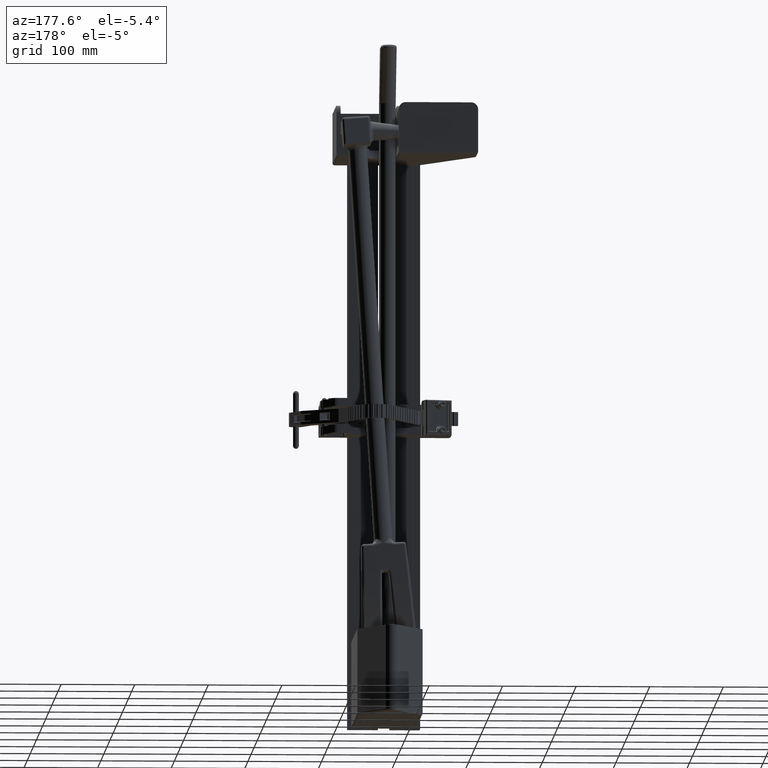
[diagram: clean part render]
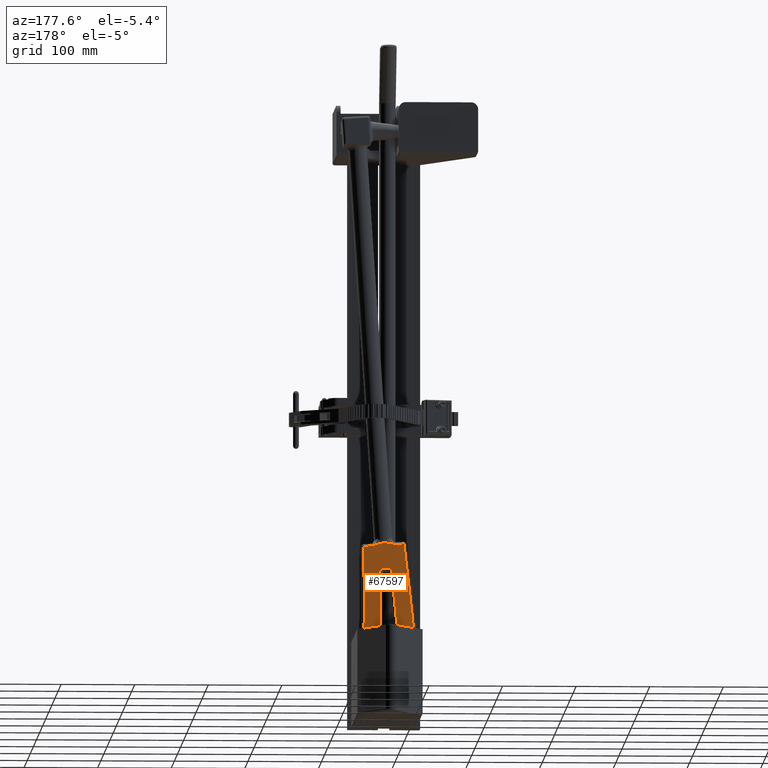
[diagram: same view with one face highlighted and labeled with its STEP entity id]
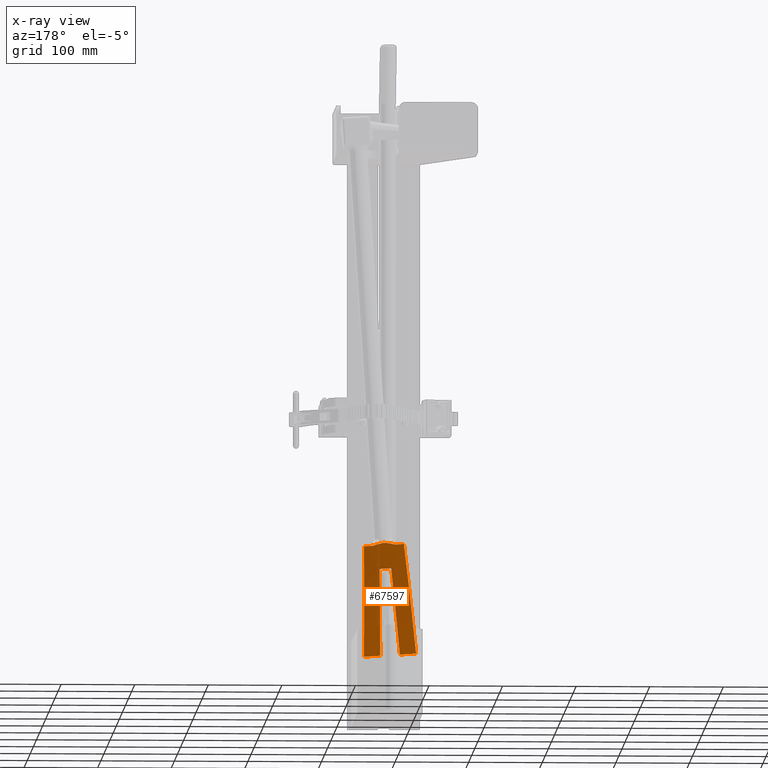
[diagram: x-ray of the same camera — body ghosted, the highlighted face saturated]
A machine part, auxiliary view. The second image highlights one B-rep face of the part: STEP entity #67597.
The next image is the same camera in x-ray: the body ghosted, the highlighted face saturated — about 0% of this face is hidden behind the body in this view.
In plain terms, the highlighted cylindrical surface (partial cylindrical patch) has radius 415.856 mm, axis along (0.998, 0.0022, -0.0633).
Its self-contained STEP definition (entity closure, byte-faithful):
#3 = ORIENTED_EDGE ( 'NONE', *, *, #25947, .T. ) ;
#6 = ORIENTED_EDGE ( 'NONE', *, *, #25945, .T. ) ;
#19 = ORIENTED_EDGE ( 'NONE', *, *, #25953, .T. ) ;
#22 = ORIENTED_EDGE ( 'NONE', *, *, #25944, .T. ) ;
#41 = ORIENTED_EDGE ( 'NONE', *, *, #25950, .T. ) ;
#45 = ORIENTED_EDGE ( 'NONE', *, *, #25942, .T. ) ;
#49 = ORIENTED_EDGE ( 'NONE', *, *, #25941, .T. ) ;
#50 = ORIENTED_EDGE ( 'NONE', *, *, #25949, .T. ) ;
#54 = ORIENTED_EDGE ( 'NONE', *, *, #25938, .T. ) ;
#64 = ORIENTED_EDGE ( 'NONE', *, *, #25943, .T. ) ;
#84 = ORIENTED_EDGE ( 'NONE', *, *, #25948, .T. ) ;
#92 = ORIENTED_EDGE ( 'NONE', *, *, #25951, .T. ) ;
#93 = ORIENTED_EDGE ( 'NONE', *, *, #25946, .T. ) ;
#99 = ORIENTED_EDGE ( 'NONE', *, *, #25952, .T. ) ;
#10930 = AXIS2_PLACEMENT_3D ( 'NONE', #47121, #47122, #47116 ) ;
#18871 = FACE_OUTER_BOUND ( 'NONE', #26546, .T. ) ;
#18877 = CYLINDRICAL_SURFACE ( 'NONE', #10930, 16.37227893540376700 ) ;
#19837 = CARTESIAN_POINT ( 'NONE',  ( 22.32575300356812100, -0.4991107057813109500, -0.4182822831564916900 ) ) ;
#19838 = CARTESIAN_POINT ( 'NONE',  ( 22.37714890094780500, -0.4983077203292660100, -0.6504825545492684000 ) ) ;
#19839 = CARTESIAN_POINT ( 'NONE',  ( 22.37714890094780500, -0.4983077203292757800, -1.069456480455216000 ) ) ;
#19840 = CARTESIAN_POINT ( 'NONE',  ( 28.17138707786700300, 0.6683475103379036300, -1.398883563788548600 ) ) ;
#19841 = CARTESIAN_POINT ( 'NONE',  ( 28.17138707786700300, 0.6683475103379057400, -0.5253212139724086100 ) ) ;
#19842 = CARTESIAN_POINT ( 'NONE',  ( 23.63676589593023200, -0.4280372755520907600, -0.3065712139724085000 ) ) ;
#19843 = CARTESIAN_POINT ( 'NONE',  ( 23.63676589593023200, -0.4280372755520910300, 0.3065712139724084400 ) ) ;
#19844 = CARTESIAN_POINT ( 'NONE',  ( 28.17138707786700300, 0.6683475103379059600, 0.5253212139724085000 ) ) ;
#19845 = CARTESIAN_POINT ( 'NONE',  ( 28.17138707786700300, 0.6683475103379036300, 1.398883563788548600 ) ) ;
#19846 = CARTESIAN_POINT ( 'NONE',  ( 22.37714890094780500, -0.4983077203292757800, 1.069456480455215400 ) ) ;
#19847 = CARTESIAN_POINT ( 'NONE',  ( 22.37714890094780500, -0.4983077203292679600, 0.6504825545492685100 ) ) ;
#19848 = CARTESIAN_POINT ( 'NONE',  ( 22.32575300356813500, -0.4991107057813106200, 0.4182822831564853600 ) ) ;
#19849 = CARTESIAN_POINT ( 'NONE',  ( 22.25062553387528300, -0.4999940920681562000, 0.0004827047481942547400 ) ) ;
#19850 = CARTESIAN_POINT ( 'NONE',  ( 22.25062553388945100, -0.4999940920680213100, -0.0004827048719906304000 ) ) ;
#25599 =( BOUNDED_CURVE ( )  B_SPLINE_CURVE ( 3, ( #44915, #44924, #44925, #44926 ),
 .UNSPECIFIED., .F., .T. ) 
 B_SPLINE_CURVE_WITH_KNOTS ( ( 4, 4 ),
 ( 4.729581034854482400, 5.092578672325952700 ),
 .UNSPECIFIED. ) 
 CURVE ( )  GEOMETRIC_REPRESENTATION_ITEM ( )  RATIONAL_B_SPLINE_CURVE ( ( 1.000000000000000000, 0.9890495032855477500, 0.9890495032855477500, 1.000000000000000000 ) ) 
 REPRESENTATION_ITEM ( '' )  );
#25633 =( BOUNDED_CURVE ( )  B_SPLINE_CURVE ( 3, ( #44923, #44940, #44941, #44942 ),
 .UNSPECIFIED., .F., .T. ) 
 B_SPLINE_CURVE_WITH_KNOTS ( ( 4, 4 ),
 ( 1.665063044591186900, 1.950986018736161000 ),
 .UNSPECIFIED. ) 
 CURVE ( )  GEOMETRIC_REPRESENTATION_ITEM ( )  RATIONAL_B_SPLINE_CURVE ( ( 1.000000000000000000, 0.9931989329278714300, 0.9931989329278714300, 1.000000000000000000 ) ) 
 REPRESENTATION_ITEM ( '' )  );
#25635 =( BOUNDED_CURVE ( )  B_SPLINE_CURVE ( 3, ( #44929, #44946, #44947, #44948 ),
 .UNSPECIFIED., .F., .T. ) 
 B_SPLINE_CURVE_WITH_KNOTS ( ( 4, 4 ),
 ( 4.332199288443425700, 4.695196925914896900 ),
 .UNSPECIFIED. ) 
 CURVE ( )  GEOMETRIC_REPRESENTATION_ITEM ( )  RATIONAL_B_SPLINE_CURVE ( ( 1.000000000000000000, 0.9890495032855476400, 0.9890495032855476400, 1.000000000000000000 ) ) 
 REPRESENTATION_ITEM ( '' )  );
#25636 =( BOUNDED_CURVE ( )  B_SPLINE_CURVE ( 3, ( #44912, #44920, #44921, #44922 ),
 .UNSPECIFIED., .F., .F. ) 
 B_SPLINE_CURVE_WITH_KNOTS ( ( 4, 4 ),
 ( 1.190606634853633900, 1.476529608998607300 ),
 .UNSPECIFIED. ) 
 CURVE ( )  GEOMETRIC_REPRESENTATION_ITEM ( )  RATIONAL_B_SPLINE_CURVE ( ( 1.000000000000000000, 0.9931989329278714300, 0.9931989329278714300, 1.000000000000000000 ) ) 
 REPRESENTATION_ITEM ( '' )  );
#25938 = EDGE_CURVE ( 'NONE', #66661, #66663, #40624, .T. ) ;
#25941 = EDGE_CURVE ( 'NONE', #66659, #66661, #25636, .T. ) ;
#25942 = EDGE_CURVE ( 'NONE', #66655, #66657, #25599, .T. ) ;
#25943 = EDGE_CURVE ( 'NONE', #66654, #66655, #40629, .T. ) ;
#25944 = EDGE_CURVE ( 'NONE', #66652, #66654, #76880, .T. ) ;
#25945 = EDGE_CURVE ( 'NONE', #66657, #66659, #40630, .T. ) ;
#25946 = EDGE_CURVE ( 'NONE', #66663, #66664, #25633, .T. ) ;
#25947 = EDGE_CURVE ( 'NONE', #66664, #66666, #40633, .T. ) ;
#25948 = EDGE_CURVE ( 'NONE', #66666, #66668, #25635, .T. ) ;
#25949 = EDGE_CURVE ( 'NONE', #66668, #66670, #40634, .T. ) ;
#25950 = EDGE_CURVE ( 'NONE', #66670, #66672, #76870, .T. ) ;
#25951 = EDGE_CURVE ( 'NONE', #66672, #66674, #76863, .T. ) ;
#25952 = EDGE_CURVE ( 'NONE', #66674, #66676, #76862, .T. ) ;
#25953 = EDGE_CURVE ( 'NONE', #66676, #66652, #76864, .T. ) ;
#26546 = EDGE_LOOP ( 'NONE', ( #22, #64, #45, #6, #49, #54, #93, #3, #84, #50, #41, #92, #99, #19 ) ) ;
#40624 = LINE ( 'NONE', #44913, #40625 ) ;
#40625 = VECTOR ( 'NONE', #44914, 39.37007874015748100 ) ;
#40629 = LINE ( 'NONE', #44927, #40632 ) ;
#40630 = LINE ( 'NONE', #44937, #40631 ) ;
#40631 = VECTOR ( 'NONE', #44938, 39.37007874015748100 ) ;
#40632 = VECTOR ( 'NONE', #44928, 39.37007874015748100 ) ;
#40633 = LINE ( 'NONE', #44943, #40636 ) ;
#40634 = LINE ( 'NONE', #44949, #40639 ) ;
#40636 = VECTOR ( 'NONE', #44944, 39.37007874015748100 ) ;
#40639 = VECTOR ( 'NONE', #44950, 39.37007874015748100 ) ;
#44912 = CARTESIAN_POINT ( 'NONE',  ( 28.17138707786700300, 0.6683475103379057400, -0.5253212139724086100 ) ) ;
#44913 = CARTESIAN_POINT ( 'NONE',  ( 23.63676589593023200, -0.4280372755520926400, 1.531250000000000000 ) ) ;
#44914 = DIRECTION ( 'NONE',  ( 0.0000000000000000000, 0.0000000000000000000, 1.000000000000000000 ) ) ;
#44915 = CARTESIAN_POINT ( 'NONE',  ( 22.37714890094780500, -0.4983077203292757800, -1.069456480455216000 ) ) ;
#44919 = CARTESIAN_POINT ( 'NONE',  ( 22.32575300356812100, -0.4991107057813109500, -0.4182822831564916900 ) ) ;
#44920 = CARTESIAN_POINT ( 'NONE',  ( 26.71744762007532300, 0.08730577122607431600, -0.4551832148692310800 ) ) ;
#44921 = CARTESIAN_POINT ( 'NONE',  ( 25.19555674417292200, -0.2806583728948935900, -0.3817672412417584300 ) ) ;
#44922 = CARTESIAN_POINT ( 'NONE',  ( 23.63676589593023200, -0.4280372755520907600, -0.3065712139724085000 ) ) ;
#44923 = CARTESIAN_POINT ( 'NONE',  ( 23.63676589593023200, -0.4280372755520910300, 0.3065712139724084400 ) ) ;
#44924 = CARTESIAN_POINT ( 'NONE',  ( 24.36884206523168900, -0.4640630490333947400, -1.182692707543456300 ) ) ;
#44925 = CARTESIAN_POINT ( 'NONE',  ( 26.32163888604168600, -0.07087233856115753000, -1.293717512078517800 ) ) ;
#44926 = CARTESIAN_POINT ( 'NONE',  ( 28.17138707786700300, 0.6683475103379036300, -1.398883563788548600 ) ) ;
#44927 = CARTESIAN_POINT ( 'NONE',  ( 22.37714890094780500, -0.4983077203292692300, 1.531250000000000000 ) ) ;
#44928 = DIRECTION ( 'NONE',  ( -0.0000000000000000000, -0.0000000000000000000, -1.000000000000000000 ) ) ;
#44929 = CARTESIAN_POINT ( 'NONE',  ( 28.17138707786700300, 0.6683475103379036300, 1.398883563788548600 ) ) ;
#44930 = CARTESIAN_POINT ( 'NONE',  ( 22.34177068318661000, -0.4988856030389913800, -0.4550761106763237000 ) ) ;
#44931 = CARTESIAN_POINT ( 'NONE',  ( 22.35451083446443500, -0.4986836856965999900, -0.4927447227213089300 ) ) ;
#44932 = CARTESIAN_POINT ( 'NONE',  ( 22.36777686488632400, -0.4984667745796566600, -0.5508076638195651400 ) ) ;
#44933 = CARTESIAN_POINT ( 'NONE',  ( 22.37122148393089900, -0.4984087297686175000, -0.5704228773294577300 ) ) ;
#44934 = CARTESIAN_POINT ( 'NONE',  ( 22.37591654127832900, -0.4983290311830029800, -0.6102390259847970700 ) ) ;
#44935 = CARTESIAN_POINT ( 'NONE',  ( 22.37714890094781600, -0.4983077203292679600, -0.6303651558313734200 ) ) ;
#44936 = CARTESIAN_POINT ( 'NONE',  ( 22.37714890094780500, -0.4983077203292660100, -0.6504825545492684000 ) ) ;
#44937 = CARTESIAN_POINT ( 'NONE',  ( 28.17138707786700300, 0.6683475103379036300, 1.531250000000000000 ) ) ;
#44938 = DIRECTION ( 'NONE',  ( 0.0000000000000000000, 0.0000000000000000000, 1.000000000000000000 ) ) ;
#44939 = CARTESIAN_POINT ( 'NONE',  ( 22.37714890094780500, -0.4983077203292679600, 0.6504825545492685100 ) ) ;
#44940 = CARTESIAN_POINT ( 'NONE',  ( 25.19555674417294400, -0.2806583728948895400, 0.3817672412417593700 ) ) ;
#44941 = CARTESIAN_POINT ( 'NONE',  ( 26.71744762007534000, 0.08730577122608149100, 0.4551832148692320800 ) ) ;
#44942 = CARTESIAN_POINT ( 'NONE',  ( 28.17138707786700300, 0.6683475103379059600, 0.5253212139724085000 ) ) ;
#44943 = CARTESIAN_POINT ( 'NONE',  ( 28.17138707786700300, 0.6683475103379036300, 1.531250000000000000 ) ) ;
#44944 = DIRECTION ( 'NONE',  ( 0.0000000000000000000, 0.0000000000000000000, 1.000000000000000000 ) ) ;
#44945 = CARTESIAN_POINT ( 'NONE',  ( 22.32575300356813500, -0.4991107057813106200, 0.4182822831564853600 ) ) ;
#44946 = CARTESIAN_POINT ( 'NONE',  ( 26.32163888604170100, -0.07087233856115533700, 1.293717512078518000 ) ) ;
#44947 = CARTESIAN_POINT ( 'NONE',  ( 24.36884206523169600, -0.4640630490333939000, 1.182692707543456300 ) ) ;
#44948 = CARTESIAN_POINT ( 'NONE',  ( 22.37714890094780500, -0.4983077203292757800, 1.069456480455215400 ) ) ;
#44949 = CARTESIAN_POINT ( 'NONE',  ( 22.37714890094780500, -0.4983077203292692300, 1.531250000000000000 ) ) ;
#44950 = DIRECTION ( 'NONE',  ( -0.0000000000000000000, -0.0000000000000000000, -1.000000000000000000 ) ) ;
#44951 = CARTESIAN_POINT ( 'NONE',  ( 22.25062553387528300, -0.4999940920681562000, 0.0004827047481942547400 ) ) ;
#44952 = CARTESIAN_POINT ( 'NONE',  ( 22.37714890094780500, -0.4983077203292678400, 0.6101831589586828000 ) ) ;
#44953 = CARTESIAN_POINT ( 'NONE',  ( 22.37229243461154100, -0.4983928681542436600, 0.5707581840100592900 ) ) ;
#44954 = CARTESIAN_POINT ( 'NONE',  ( 22.35908792462282700, -0.4986088819377201800, 0.5126865552896258100 ) ) ;
#44955 = CARTESIAN_POINT ( 'NONE',  ( 22.35368789415236200, -0.4986955113719620000, 0.4935091249960929500 ) ) ;
#44956 = CARTESIAN_POINT ( 'NONE',  ( 22.34102378491793700, -0.4988902004961760000, 0.4554898588960106200 ) ) ;
#44957 = CARTESIAN_POINT ( 'NONE',  ( 22.33377348458257200, -0.4989979908117218600, 0.4367059376495450700 ) ) ;
#44958 = CARTESIAN_POINT ( 'NONE',  ( 22.32575300356813500, -0.4991107057813106200, 0.4182822831564853600 ) ) ;
#44959 = CARTESIAN_POINT ( 'NONE',  ( 22.25062553388945100, -0.4999940920680213100, -0.0004827048719906304000 ) ) ;
#44960 = CARTESIAN_POINT ( 'NONE',  ( 22.32397881782552000, -0.4991356391103296000, 0.4142068436573569900 ) ) ;
#44961 = CARTESIAN_POINT ( 'NONE',  ( 22.32259097389156500, -0.4991548952314649500, 0.4099989833276998000 ) ) ;
#44962 = CARTESIAN_POINT ( 'NONE',  ( 22.31984368511407300, -0.4991927426467839800, 0.4015735275466204600 ) ) ;
#44963 = CARTESIAN_POINT ( 'NONE',  ( 22.31856117671776100, -0.4992102411931849100, 0.3973273435377681100 ) ) ;
#44964 = CARTESIAN_POINT ( 'NONE',  ( 22.31488482627942100, -0.4992600157734783900, 0.3845513792526210600 ) ) ;
#44965 = CARTESIAN_POINT ( 'NONE',  ( 22.31266069680119200, -0.4992895954947736400, 0.3759806560089527000 ) ) ;
#44966 = CARTESIAN_POINT ( 'NONE',  ( 22.30636348638711700, -0.4993722480422508300, 0.3501801162606323300 ) ) ;
#44967 = CARTESIAN_POINT ( 'NONE',  ( 22.30266721998519600, -0.4994192227447246700, 0.3328615443178530900 ) ) ;
#44968 = CARTESIAN_POINT ( 'NONE',  ( 22.29231155817583200, -0.4995479651124274400, 0.2807331432796336700 ) ) ;
#44969 = CARTESIAN_POINT ( 'NONE',  ( 22.28640430751948600, -0.4996173280258663400, 0.2458102376804541200 ) ) ;
#44970 = CARTESIAN_POINT ( 'NONE',  ( 22.26979000062182500, -0.4998052540225304500, 0.1408736413127052400 ) ) ;
#44971 = CARTESIAN_POINT ( 'NONE',  ( 22.26024524272174800, -0.4999030537471716400, 0.07066774978378397000 ) ) ;
#44972 = CARTESIAN_POINT ( 'NONE',  ( 22.25062553387528300, -0.4999940920681562000, 0.0004827047481942547400 ) ) ;
#44973 = CARTESIAN_POINT ( 'NONE',  ( 22.25058183548797100, -0.4999945056178646800, 0.0001638825659774892500 ) ) ;
#44974 = CARTESIAN_POINT ( 'NONE',  ( 22.25058183549423100, -0.4999945056178084500, -0.0001638826908973019200 ) ) ;
#44975 = CARTESIAN_POINT ( 'NONE',  ( 22.25062553388945100, -0.4999940920680213100, -0.0004827048719906304000 ) ) ;
#44977 = CARTESIAN_POINT ( 'NONE',  ( 22.26024123179037100, -0.4999030917055336500, -0.07063855358566197000 ) ) ;
#44978 = CARTESIAN_POINT ( 'NONE',  ( 22.26978170869389500, -0.4998053340880611000, -0.1408079140265557100 ) ) ;
#44979 = CARTESIAN_POINT ( 'NONE',  ( 22.28637802229483000, -0.4996176321842922800, -0.2456508784242879600 ) ) ;
#44980 = CARTESIAN_POINT ( 'NONE',  ( 22.29227702824662000, -0.4995483734879148100, -0.2805325439605321800 ) ) ;
#44981 = CARTESIAN_POINT ( 'NONE',  ( 22.30261024961119200, -0.4994199413440772500, -0.3325880138227826900 ) ) ;
#44982 = CARTESIAN_POINT ( 'NONE',  ( 22.30629996065856700, -0.4993730649359246500, -0.3498957186960419700 ) ) ;
#44983 = CARTESIAN_POINT ( 'NONE',  ( 22.31259435348185600, -0.4992904745214603000, -0.3757206203677560500 ) ) ;
#44984 = CARTESIAN_POINT ( 'NONE',  ( 22.31481868090899600, -0.4992609017963265400, -0.3843062243317833500 ) ) ;
#44985 = CARTESIAN_POINT ( 'NONE',  ( 22.31850014077177100, -0.4992110721502277000, -0.3971225874678932500 ) ) ;
#44986 = CARTESIAN_POINT ( 'NONE',  ( 22.31978471611108700, -0.4991935506104507900, -0.4013843811242019400 ) ) ;
#44987 = CARTESIAN_POINT ( 'NONE',  ( 22.32254734323190700, -0.4991555005485418500, -0.4098731717241642600 ) ) ;
#44988 = CARTESIAN_POINT ( 'NONE',  ( 22.32393913220775500, -0.4991361968279037200, -0.4141156827770390300 ) ) ;
#44989 = CARTESIAN_POINT ( 'NONE',  ( 22.32575300356812100, -0.4991107057813109500, -0.4182822831564916900 ) ) ;
#47116 = DIRECTION ( 'NONE',  ( -1.000000000000000000, 0.0000000000000000000, 0.0000000000000000000 ) ) ;
#47121 = CARTESIAN_POINT ( 'NONE',  ( 22.09568965517229000, 15.87155172413858600, 1.531250000000000000 ) ) ;
#47122 = DIRECTION ( 'NONE',  ( -0.0000000000000000000, -0.0000000000000000000, -1.000000000000000000 ) ) ;
#66652 = VERTEX_POINT ( 'NONE', #19837 ) ;
#66654 = VERTEX_POINT ( 'NONE', #19838 ) ;
#66655 = VERTEX_POINT ( 'NONE', #19839 ) ;
#66657 = VERTEX_POINT ( 'NONE', #19840 ) ;
#66659 = VERTEX_POINT ( 'NONE', #19841 ) ;
#66661 = VERTEX_POINT ( 'NONE', #19842 ) ;
#66663 = VERTEX_POINT ( 'NONE', #19843 ) ;
#66664 = VERTEX_POINT ( 'NONE', #19844 ) ;
#66666 = VERTEX_POINT ( 'NONE', #19845 ) ;
#66668 = VERTEX_POINT ( 'NONE', #19846 ) ;
#66670 = VERTEX_POINT ( 'NONE', #19847 ) ;
#66672 = VERTEX_POINT ( 'NONE', #19848 ) ;
#66674 = VERTEX_POINT ( 'NONE', #19849 ) ;
#66676 = VERTEX_POINT ( 'NONE', #19850 ) ;
#67597 = ADVANCED_FACE ( 'NONE', ( #18871 ), #18877, .T. ) ;
#76862 = B_SPLINE_CURVE_WITH_KNOTS ( 'NONE', 3,
 ( #44951, #44973, #44974, #44975 ),
 .UNSPECIFIED., .F., .F.,
 ( 4, 4 ),
 ( 1.012733089934565000E-014, 2.452140436282341500E-005 ),
 .UNSPECIFIED. ) ;
#76863 = B_SPLINE_CURVE_WITH_KNOTS ( 'NONE', 3,
 ( #44945, #44960, #44961, #44962, #44963, #44964, #44965, #44966, #44967, #44968, #44969, #44970, #44971, #44972 ),
 .UNSPECIFIED., .F., .F.,
 ( 4, 2, 2, 2, 2, 2, 4 ),
 ( 3.989863994746656300E-017, 0.0003376094084865324700, 0.0006752188169730250400, 0.001350437633945918000, 0.002700875267891699000, 0.005401750535783259200, 0.01080350107156638000 ),
 .UNSPECIFIED. ) ;
#76864 = B_SPLINE_CURVE_WITH_KNOTS ( 'NONE', 3,
 ( #44959, #44977, #44978, #44979, #44980, #44981, #44982, #44983, #44984, #44985, #44986, #44987, #44988, #44989 ),
 .UNSPECIFIED., .F., .F.,
 ( 4, 2, 2, 2, 2, 2, 4 ),
 ( 0.0000000000000000000, 0.005391167272665824500, 0.008086750908998737600, 0.009434542727165195000, 0.01010843863624842500, 0.01044538659078999800, 0.01078233454533156900 ),
 .UNSPECIFIED. ) ;
#76870 = B_SPLINE_CURVE_WITH_KNOTS ( 'NONE', 3,
 ( #44939, #44952, #44953, #44954, #44955, #44956, #44957, #44958 ),
 .UNSPECIFIED., .F., .F.,
 ( 4, 2, 2, 4 ),
 ( 0.0000000000000000000, 0.003022230511584099200, 0.004533345767376114300, 0.006044461023168129800 ),
 .UNSPECIFIED. ) ;
#76880 = B_SPLINE_CURVE_WITH_KNOTS ( 'NONE', 3,
 ( #44919, #44930, #44931, #44932, #44933, #44934, #44935, #44936 ),
 .UNSPECIFIED., .F., .F.,
 ( 4, 2, 2, 4 ),
 ( 6.765421556309547700E-017, 0.003023645344711976100, 0.004535468017067930400, 0.006047290689423884600 ),
 .UNSPECIFIED. ) ;